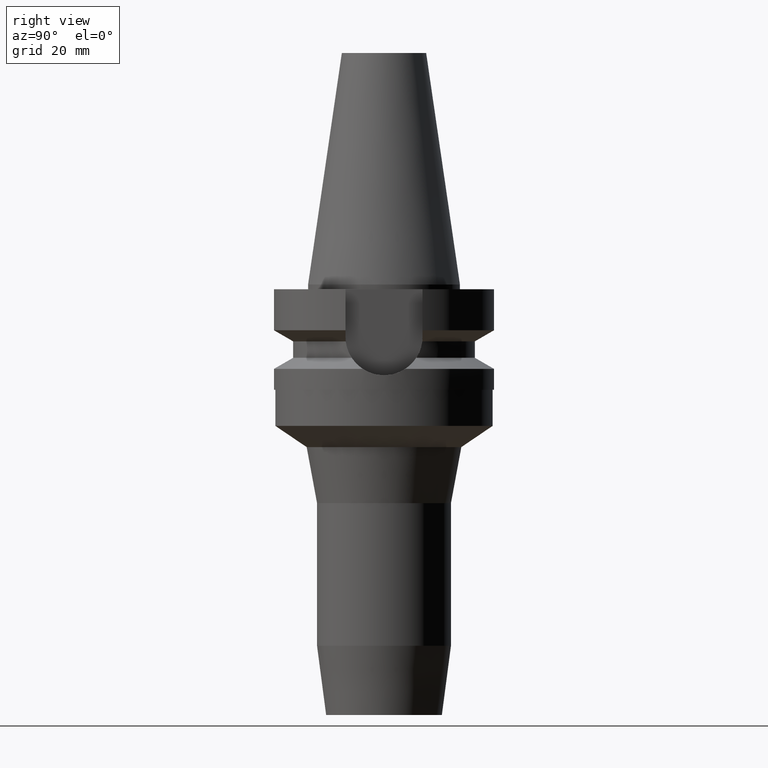
[diagram: clean part render]
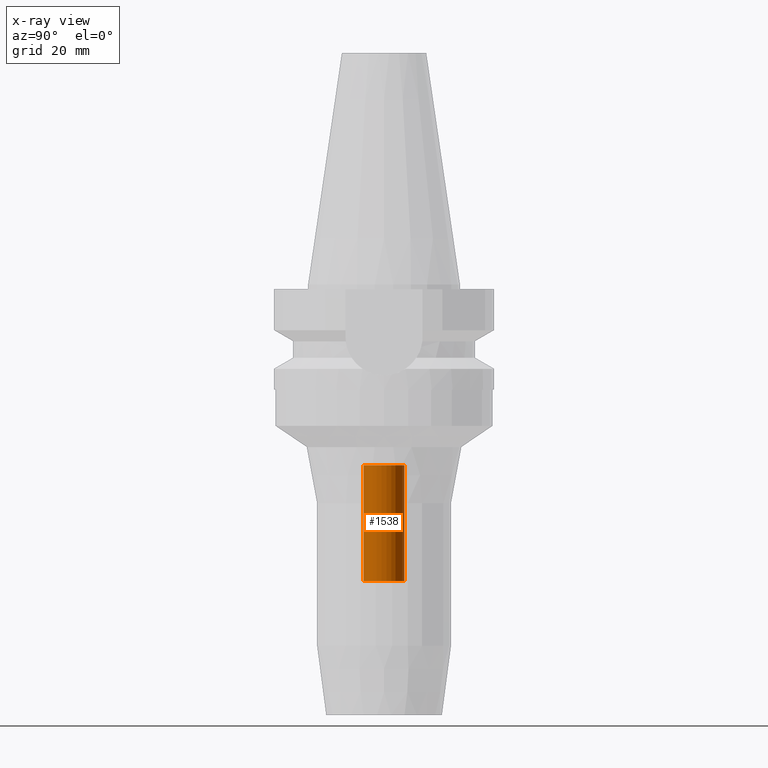
[diagram: x-ray — body ghosted, one internal face saturated and labeled with its STEP entity id]
A machine part, right view, then the same camera in x-ray: the body is ghosted and one INTERNAL B-rep face — a face not visible from any outside direction — is saturated and labeled: STEP entity #1538.
In plain terms, the highlighted cylindrical surface (edge-blend (fillet) strip) has radius 4.25 mm, axis along (0, 0, -1).
Its self-contained STEP definition (entity closure, byte-faithful):
#262=CARTESIAN_POINT('',(0.E0,1.902121408436E-14,-3.78E1));
#263=DIRECTION('',(0.E0,0.E0,1.E0));
#264=DIRECTION('',(0.E0,-1.E0,0.E0));
#265=AXIS2_PLACEMENT_3D('',#262,#263,#264);
#294=DIRECTION('',(0.E0,0.E0,1.E0));
#295=VECTOR('',#294,2.42E1);
#296=CARTESIAN_POINT('',(0.E0,4.25E0,-6.2E1));
#297=LINE('',#296,#295);
#301=DIRECTION('',(0.E0,0.E0,1.E0));
#302=VECTOR('',#301,2.42E1);
#303=CARTESIAN_POINT('',(0.E0,-4.25E0,-6.2E1));
#304=LINE('',#303,#302);
#316=CARTESIAN_POINT('',(0.E0,1.902121408436E-14,-6.2E1));
#317=DIRECTION('',(0.E0,0.E0,-1.E0));
#318=DIRECTION('',(0.E0,1.E0,0.E0));
#319=AXIS2_PLACEMENT_3D('',#316,#317,#318);
#1154=CARTESIAN_POINT('',(0.E0,-4.25E0,-3.78E1));
#1155=CARTESIAN_POINT('',(0.E0,4.25E0,-3.78E1));
#1156=VERTEX_POINT('',#1154);
#1157=VERTEX_POINT('',#1155);
#1158=CARTESIAN_POINT('',(0.E0,4.25E0,-6.2E1));
#1159=VERTEX_POINT('',#1158);
#1160=CARTESIAN_POINT('',(0.E0,-4.25E0,-6.2E1));
#1161=VERTEX_POINT('',#1160);
#1524=CARTESIAN_POINT('',(0.E0,1.902121408436E-14,5.532E1));
#1525=DIRECTION('',(0.E0,0.E0,-1.E0));
#1526=DIRECTION('',(0.E0,-1.E0,0.E0));
#1527=AXIS2_PLACEMENT_3D('',#1524,#1525,#1526);
#1528=CYLINDRICAL_SURFACE('',#1527,4.25E0);
#1530=ORIENTED_EDGE('',*,*,#1529,.T.);
#1531=ORIENTED_EDGE('',*,*,#1513,.F.);
#1533=ORIENTED_EDGE('',*,*,#1532,.F.);
#1535=ORIENTED_EDGE('',*,*,#1534,.F.);
#1536=EDGE_LOOP('',(#1530,#1531,#1533,#1535));
#1537=FACE_OUTER_BOUND('',#1536,.F.);
#266=CIRCLE('',#265,4.25E0);
#320=CIRCLE('',#319,4.25E0);
#1513=EDGE_CURVE('',#1156,#1157,#266,.T.);
#1529=EDGE_CURVE('',#1159,#1157,#297,.T.);
#1532=EDGE_CURVE('',#1161,#1156,#304,.T.);
#1534=EDGE_CURVE('',#1159,#1161,#320,.T.);
#1538=ADVANCED_FACE('',(#1537),#1528,.F.);